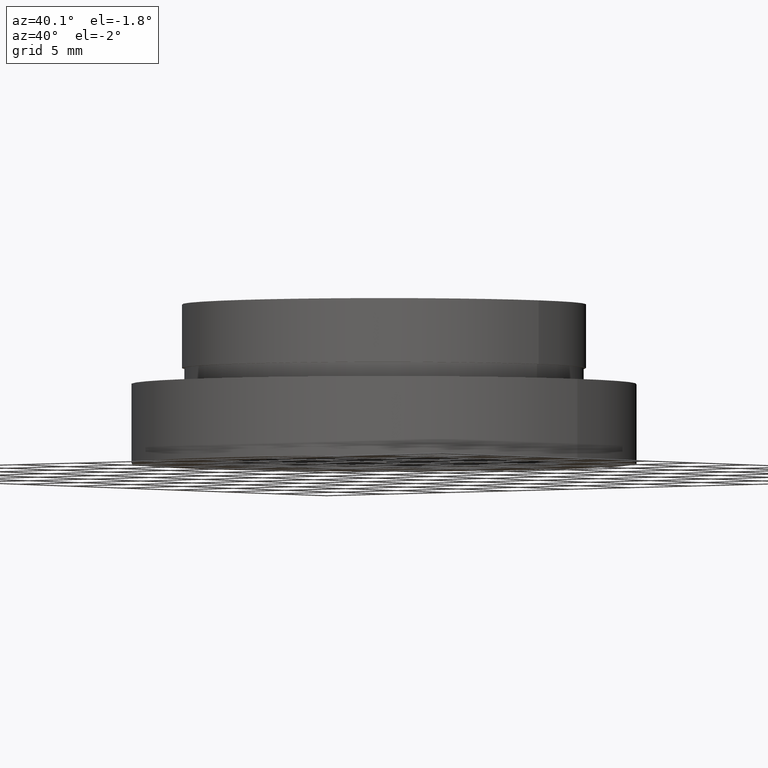
[diagram: clean part render]
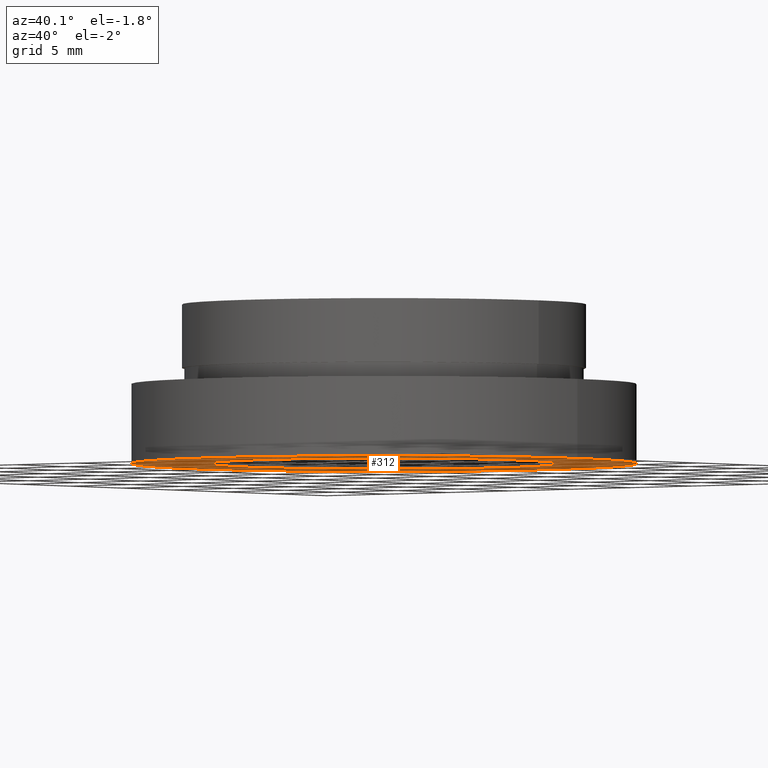
[diagram: same view with one face highlighted and labeled with its STEP entity id]
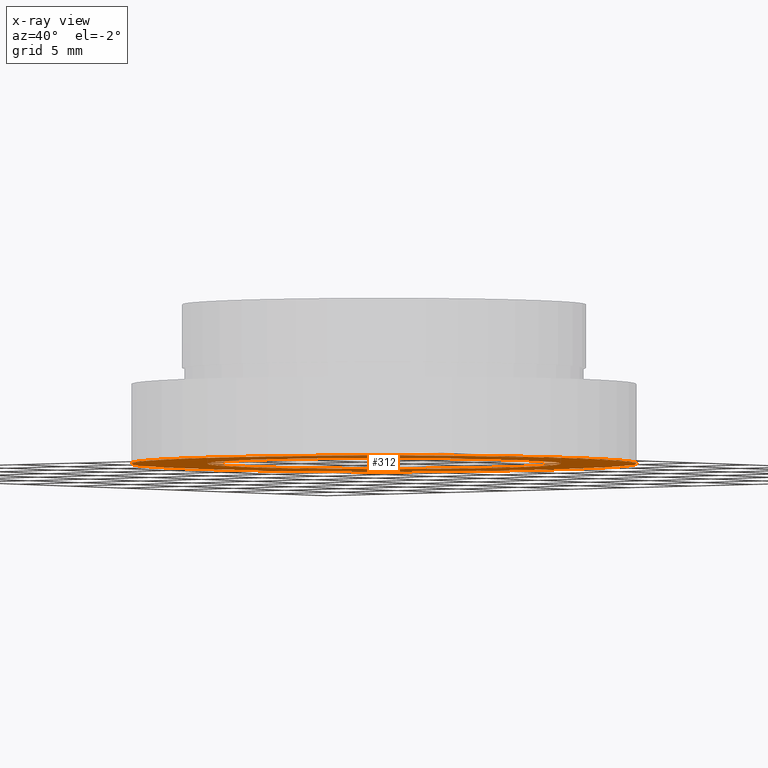
[diagram: x-ray of the same camera — body ghosted, the highlighted face saturated]
A machine part, auxiliary view. The second image highlights one B-rep face of the part: STEP entity #312.
The next image is the same camera in x-ray: the body ghosted, the highlighted face saturated — about 0% of this face is hidden behind the body in this view.
In plain terms, the highlighted planar face has unit normal (0, 0, 1).
Its self-contained STEP definition (entity closure, byte-faithful):
#7 = DIRECTION ( 'NONE',  ( -0.0000000000000000000, -0.0000000000000000000, -1.000000000000000000 ) ) ;
#17 = DIRECTION ( 'NONE',  ( 0.0000000000000000000, 0.0000000000000000000, 1.000000000000000000 ) ) ;
#23 = CIRCLE ( 'NONE', #293, 11.10000000000000100 ) ;
#28 = CARTESIAN_POINT ( 'NONE',  ( -11.10000000000000100, 0.0000000000000000000, -10.00000000000000000 ) ) ;
#42 = EDGE_CURVE ( 'NONE', #379, #403, #100, .T. ) ;
#45 = FACE_BOUND ( 'NONE', #272, .T. ) ;
#54 = DIRECTION ( 'NONE',  ( -1.000000000000000000, 0.0000000000000000000, 0.0000000000000000000 ) ) ;
#62 = AXIS2_PLACEMENT_3D ( 'NONE', #331, #298, #241 ) ;
#65 = DIRECTION ( 'NONE',  ( -1.000000000000000000, 0.0000000000000000000, 0.0000000000000000000 ) ) ;
#100 = CIRCLE ( 'NONE', #219, 11.10000000000000100 ) ;
#129 = DIRECTION ( 'NONE',  ( -0.0000000000000000000, -0.0000000000000000000, -1.000000000000000000 ) ) ;
#139 = CARTESIAN_POINT ( 'NONE',  ( -15.87500000000000000, 0.0000000000000000000, -10.00000000000000000 ) ) ;
#143 = ORIENTED_EDGE ( 'NONE', *, *, #407, .F. ) ;
#147 = AXIS2_PLACEMENT_3D ( 'NONE', #232, #17, #186 ) ;
#180 = EDGE_LOOP ( 'NONE', ( #334, #417 ) ) ;
#183 = CARTESIAN_POINT ( 'NONE',  ( 0.0000000000000000000, 0.0000000000000000000, -10.00000000000000000 ) ) ;
#186 = DIRECTION ( 'NONE',  ( 1.000000000000000000, 0.0000000000000000000, -0.0000000000000000000 ) ) ;
#189 = CIRCLE ( 'NONE', #301, 15.87500000000000000 ) ;
#195 = VERTEX_POINT ( 'NONE', #400 ) ;
#219 = AXIS2_PLACEMENT_3D ( 'NONE', #311, #129, #65 ) ;
#232 = CARTESIAN_POINT ( 'NONE',  ( 15.87500000000000000, 0.0000000000000000000, -10.00000000000000000 ) ) ;
#241 = DIRECTION ( 'NONE',  ( -1.000000000000000000, 0.0000000000000000000, 0.0000000000000000000 ) ) ;
#243 = DIRECTION ( 'NONE',  ( -1.000000000000000000, 0.0000000000000000000, 0.0000000000000000000 ) ) ;
#260 = FACE_OUTER_BOUND ( 'NONE', #180, .T. ) ;
#261 = EDGE_CURVE ( 'NONE', #195, #350, #429, .T. ) ;
#272 = EDGE_LOOP ( 'NONE', ( #368, #143 ) ) ;
#293 = AXIS2_PLACEMENT_3D ( 'NONE', #183, #383, #243 ) ;
#298 = DIRECTION ( 'NONE',  ( -0.0000000000000000000, -0.0000000000000000000, -1.000000000000000000 ) ) ;
#301 = AXIS2_PLACEMENT_3D ( 'NONE', #309, #7, #54 ) ;
#309 = CARTESIAN_POINT ( 'NONE',  ( 0.0000000000000000000, 0.0000000000000000000, -10.00000000000000000 ) ) ;
#311 = CARTESIAN_POINT ( 'NONE',  ( 0.0000000000000000000, 0.0000000000000000000, -10.00000000000000000 ) ) ;
#312 = ADVANCED_FACE ( 'NONE', ( #45, #260 ), #343, .F. ) ;
#331 = CARTESIAN_POINT ( 'NONE',  ( 0.0000000000000000000, 0.0000000000000000000, -10.00000000000000000 ) ) ;
#334 = ORIENTED_EDGE ( 'NONE', *, *, #411, .T. ) ;
#343 = PLANE ( 'NONE',  #147 ) ;
#350 = VERTEX_POINT ( 'NONE', #139 ) ;
#368 = ORIENTED_EDGE ( 'NONE', *, *, #42, .F. ) ;
#379 = VERTEX_POINT ( 'NONE', #28 ) ;
#383 = DIRECTION ( 'NONE',  ( -0.0000000000000000000, -0.0000000000000000000, -1.000000000000000000 ) ) ;
#400 = CARTESIAN_POINT ( 'NONE',  ( 15.87500000000000000, 1.944126793646423200E-015, -10.00000000000000000 ) ) ;
#403 = VERTEX_POINT ( 'NONE', #423 ) ;
#407 = EDGE_CURVE ( 'NONE', #403, #379, #23, .T. ) ;
#411 = EDGE_CURVE ( 'NONE', #350, #195, #189, .T. ) ;
#417 = ORIENTED_EDGE ( 'NONE', *, *, #261, .T. ) ;
#423 = CARTESIAN_POINT ( 'NONE',  ( 11.10000000000000100, 1.359357947053562400E-015, -10.00000000000000000 ) ) ;
#429 = CIRCLE ( 'NONE', #62, 15.87500000000000000 ) ;